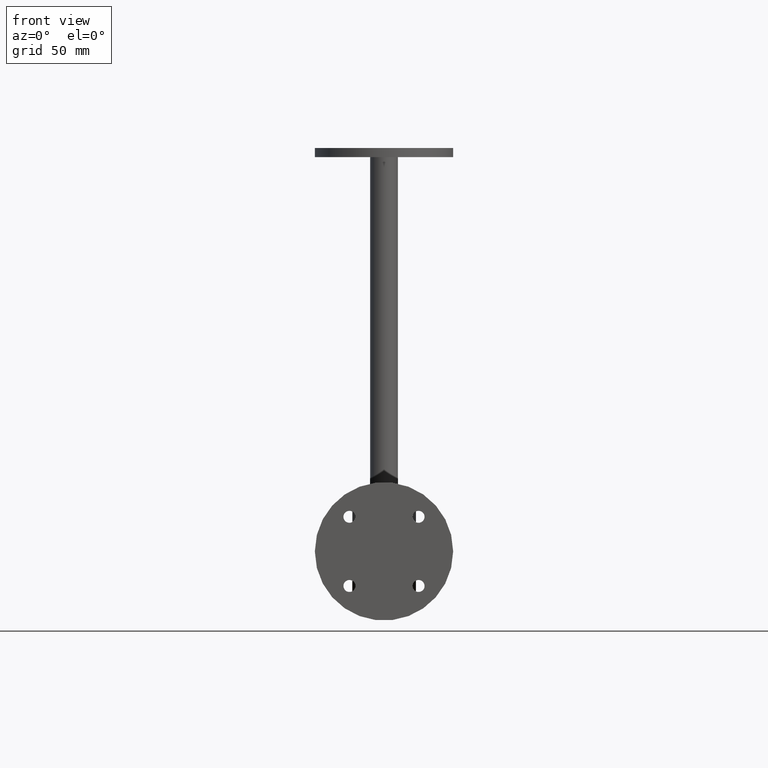
[diagram: clean part render]
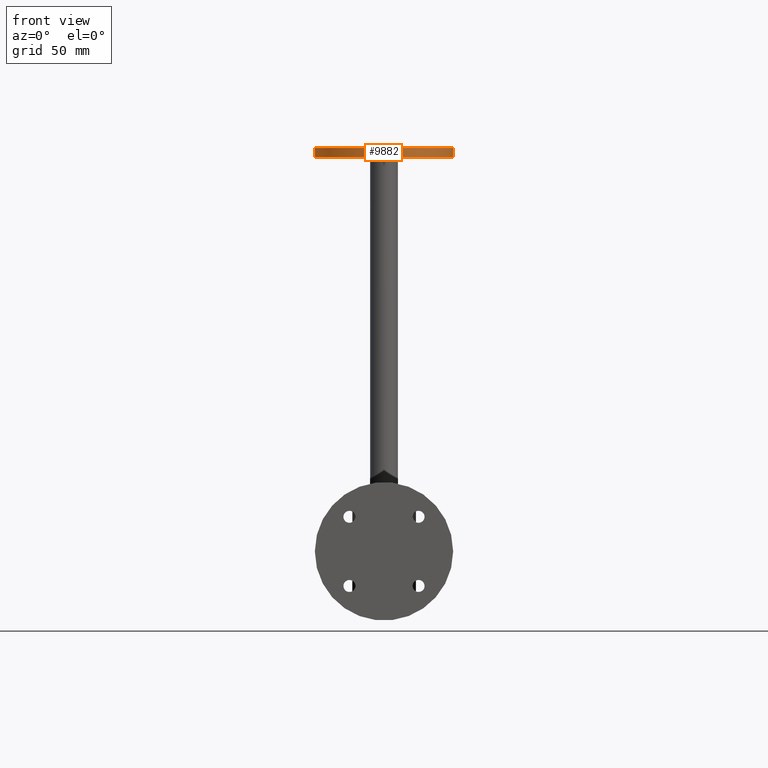
[diagram: same view with one face highlighted and labeled with its STEP entity id]
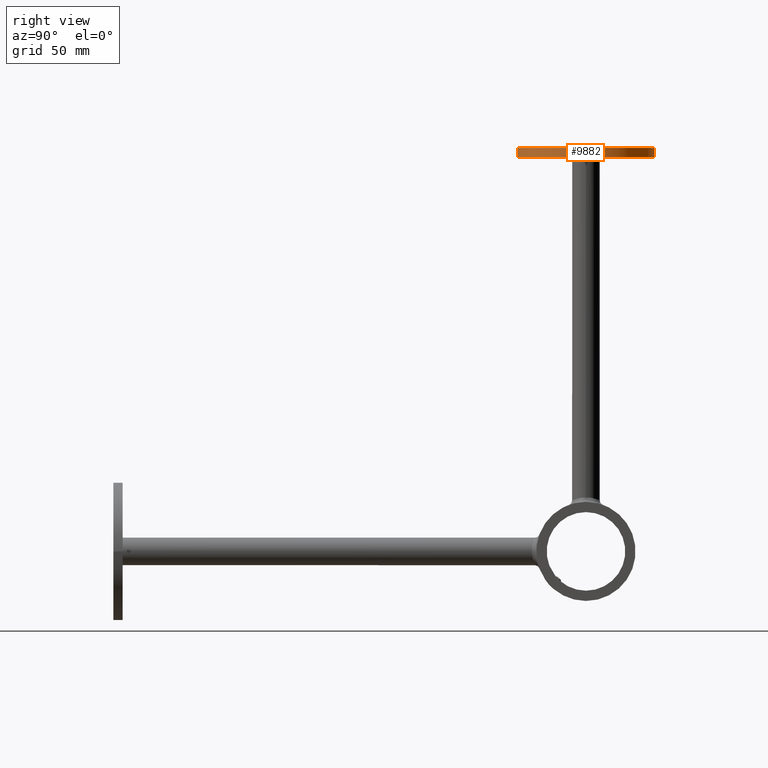
[diagram: same view with one face highlighted and labeled with its STEP entity id]
A machine part, front view. The second image highlights one B-rep face of the part: STEP entity #9882.
A second angle (right view) of the same face is appended — the face is thin or edge-on in the first view.
In plain terms, the highlighted cylindrical surface (bore or boss wall) has radius 30 mm, axis along (-0, -0, 1).
Its self-contained STEP definition (entity closure, byte-faithful):
#185 = DIRECTION ( 'NONE',  ( 1.000000000000000000, 0.000000000000000000, 0.000000000000000000 ) ) ;
#226 = ORIENTED_EDGE ( 'NONE', *, *, #9966, .T. ) ;
#281 = AXIS2_PLACEMENT_3D ( 'NONE', #1013, #11017, #8042 ) ;
#1013 = CARTESIAN_POINT ( 'NONE',  ( -170.9999999999999716, 205.0000000000000000, 0.000000000000000000 ) ) ;
#1547 = EDGE_CURVE ( 'NONE', #10672, #10672, #12443, .T. ) ;
#1767 = ORIENTED_EDGE ( 'NONE', *, *, #1547, .F. ) ;
#2070 = VERTEX_POINT ( 'NONE', #7567 ) ;
#2241 = DIRECTION ( 'NONE',  ( 0.000000000000000000, 0.000000000000000000, -1.000000000000000000 ) ) ;
#2747 = AXIS2_PLACEMENT_3D ( 'NONE', #10431, #5551, #12307 ) ;
#4426 = FACE_OUTER_BOUND ( 'NONE', #8946, .T. ) ;
#4552 = EDGE_LOOP ( 'NONE', ( #226 ) ) ;
#5195 = CARTESIAN_POINT ( 'NONE',  ( -170.9999999999999716, 205.0000000000000000, 0.000000000000000000 ) ) ;
#5551 = DIRECTION ( 'NONE',  ( 1.000000000000000000, 0.000000000000000000, 0.000000000000000000 ) ) ;
#7481 = CYLINDRICAL_SURFACE ( 'NONE', #281, 30.00000000000000000 ) ;
#7567 = CARTESIAN_POINT ( 'NONE',  ( -175.0000000000000000, 205.0000000000000000, -30.00000000000000000 ) ) ;
#8042 = DIRECTION ( 'NONE',  ( 0.000000000000000000, 0.000000000000000000, 1.000000000000000000 ) ) ;
#8946 = EDGE_LOOP ( 'NONE', ( #1767 ) ) ;
#9082 = AXIS2_PLACEMENT_3D ( 'NONE', #5195, #185, #2241 ) ;
#9150 = FACE_OUTER_BOUND ( 'NONE', #4552, .T. ) ;
#9882 = ADVANCED_FACE ( 'NONE', ( #4426, #9150 ), #7481, .T. ) ;
#9966 = EDGE_CURVE ( 'NONE', #2070, #2070, #10068, .T. ) ;
#10068 = CIRCLE ( 'NONE', #2747, 30.00000000000000000 ) ;
#10431 = CARTESIAN_POINT ( 'NONE',  ( -175.0000000000000000, 205.0000000000000000, 0.000000000000000000 ) ) ;
#10535 = CARTESIAN_POINT ( 'NONE',  ( -170.9999999999999716, 205.0000000000000000, -30.00000000000000000 ) ) ;
#10672 = VERTEX_POINT ( 'NONE', #10535 ) ;
#11017 = DIRECTION ( 'NONE',  ( -1.000000000000000000, -0.000000000000000000, -0.000000000000000000 ) ) ;
#12307 = DIRECTION ( 'NONE',  ( 0.000000000000000000, 0.000000000000000000, -1.000000000000000000 ) ) ;
#12443 = CIRCLE ( 'NONE', #9082, 30.00000000000000000 ) ;